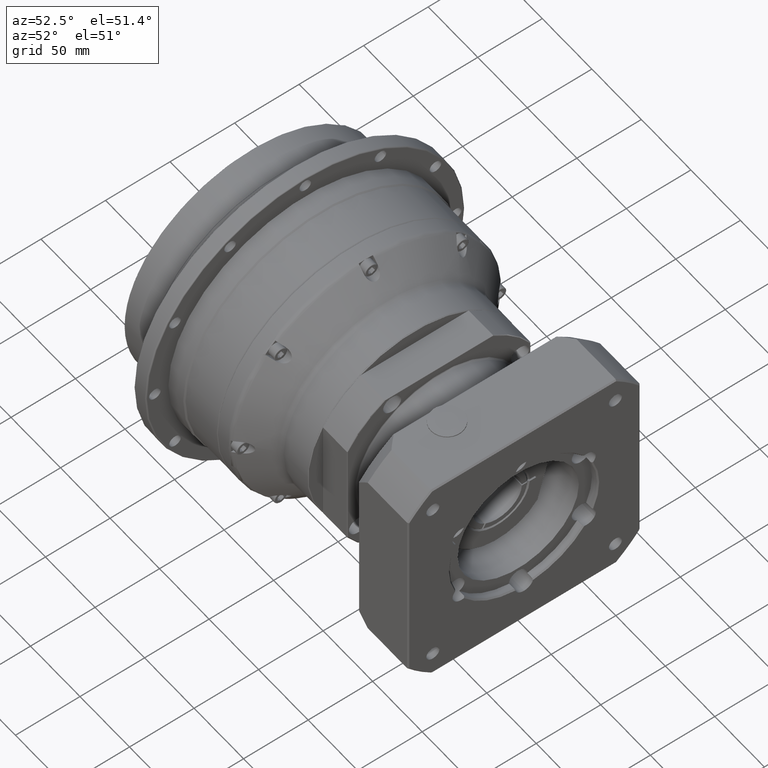
[diagram: clean part render]
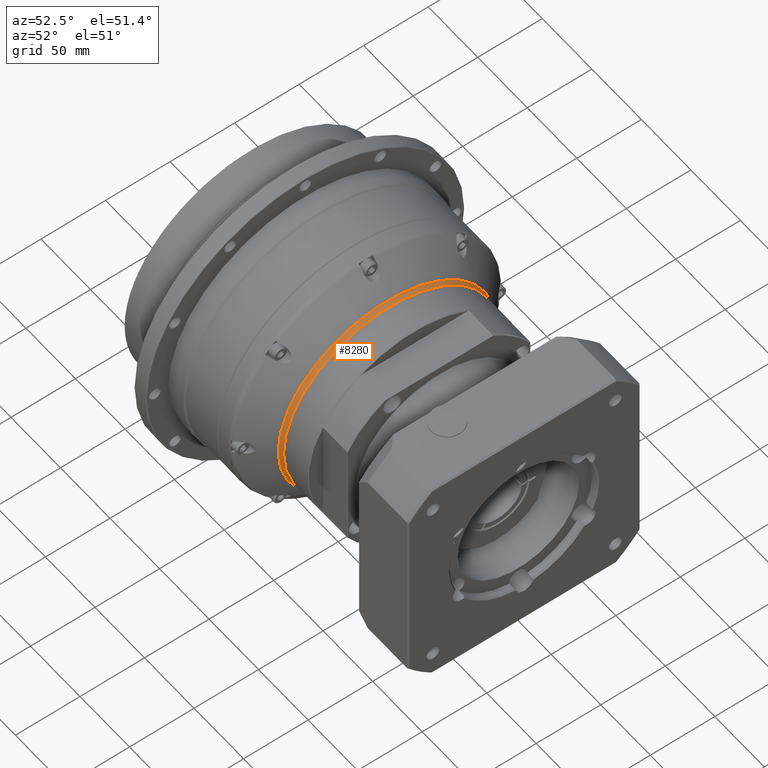
[diagram: same view with one face highlighted and labeled with its STEP entity id]
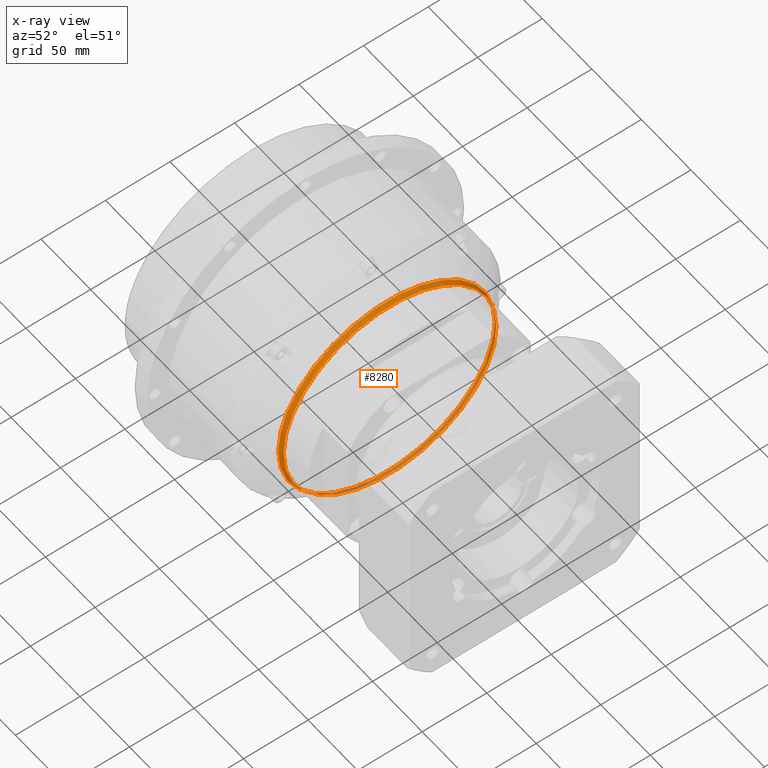
[diagram: x-ray of the same camera — body ghosted, the highlighted face saturated]
A machine part, auxiliary view. The second image highlights one B-rep face of the part: STEP entity #8280.
The next image is the same camera in x-ray: the body ghosted, the highlighted face saturated — about 32% of this face is hidden behind the body in this view.
In plain terms, the highlighted toroidal blend (fillet) surface has major radius 87.5 mm and minor (blend) radius 5 mm.
Its self-contained STEP definition (entity closure, byte-faithful):
#929=TOROIDAL_SURFACE('',#9185,87.5,5.);
#1840=FACE_BOUND('',#3090,.T.);
#2283=FACE_OUTER_BOUND('',#3089,.T.);
#3089=EDGE_LOOP('',(#6735));
#3090=EDGE_LOOP('',(#6736));
#3746=CIRCLE('',#9186,83.9644660940673);
#3747=CIRCLE('',#9187,82.5);
#4334=VERTEX_POINT('',#13840);
#4335=VERTEX_POINT('',#13842);
#5214=EDGE_CURVE('',#4334,#4334,#3746,.T.);
#5215=EDGE_CURVE('',#4335,#4335,#3747,.T.);
#6735=ORIENTED_EDGE('',*,*,#5214,.T.);
#6736=ORIENTED_EDGE('',*,*,#5215,.T.);
#8280=ADVANCED_FACE('',(#2283,#1840),#929,.F.);
#9185=AXIS2_PLACEMENT_3D('',#13839,#11005,#11006);
#9186=AXIS2_PLACEMENT_3D('',#13841,#11007,#11008);
#9187=AXIS2_PLACEMENT_3D('',#13843,#11009,#11010);
#11005=DIRECTION('center_axis',(1.,-1.87800945418359E-16,-3.00786901807392E-15));
#11006=DIRECTION('ref_axis',(-3.07261723571935E-15,-2.45809378857548E-15,
-1.));
#11007=DIRECTION('center_axis',(1.,-9.15914022456353E-17,-3.00786901807392E-15));
#11008=DIRECTION('ref_axis',(-9.15914022456279E-17,-1.,2.49075044382921E-15));
#11009=DIRECTION('center_axis',(-1.,1.87800945418359E-16,3.00786901807392E-15));
#11010=DIRECTION('ref_axis',(-1.88452102617545E-16,-1.,2.64383129372263E-15));
#13839=CARTESIAN_POINT('Origin',(107.324380544866,-115.418937513062,173.743418071175));
#13840=CARTESIAN_POINT('',(103.788846638933,-31.4544714189949,173.743418071175));
#13841=CARTESIAN_POINT('Origin',(103.788846638933,-115.418937513062,173.743418071175));
#13842=CARTESIAN_POINT('',(107.324380544866,-32.9189375130622,173.743418071175));
#13843=CARTESIAN_POINT('Origin',(107.324380544866,-115.418937513062,173.743418071175));